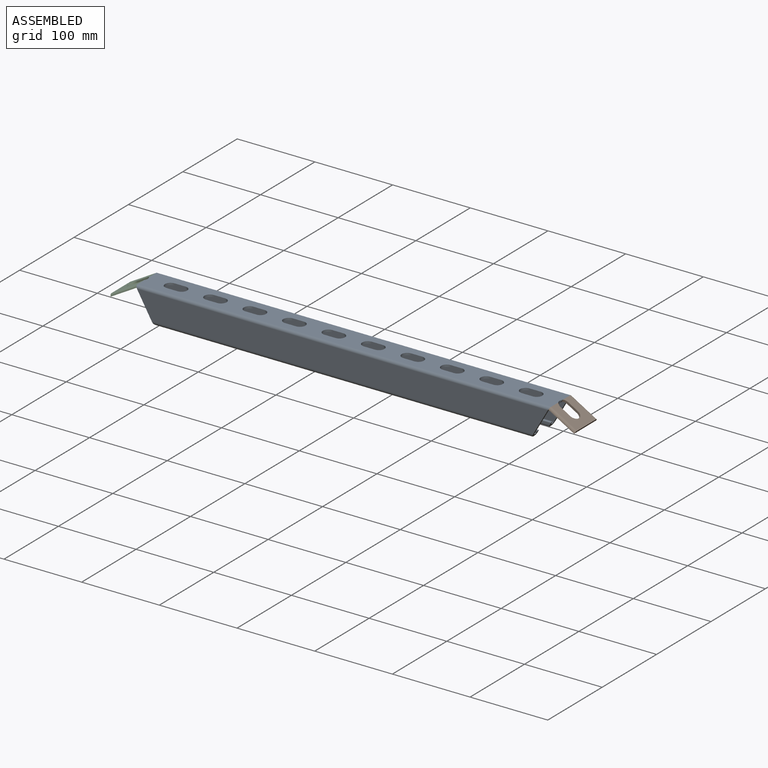
[diagram: assembled view]
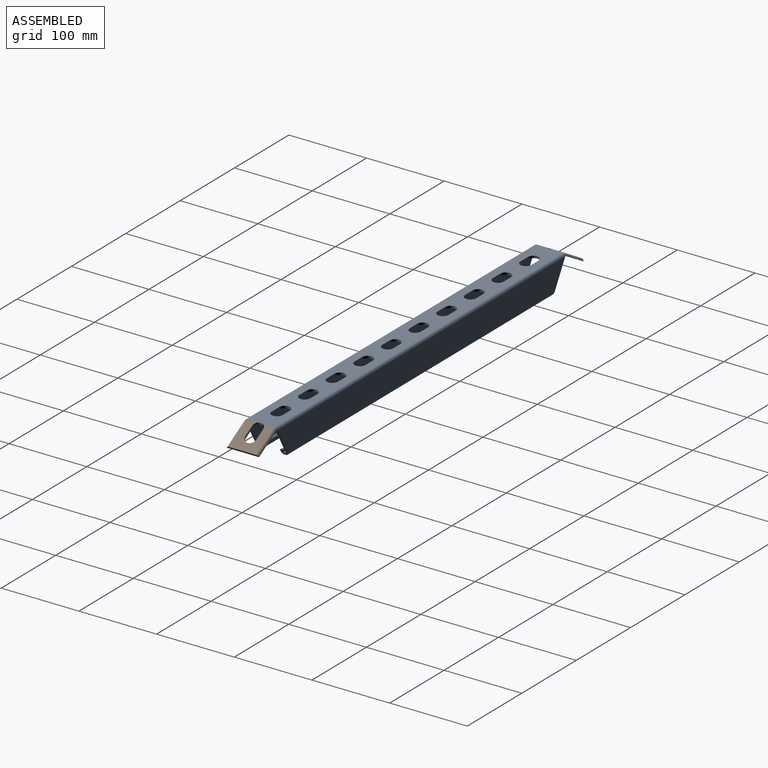
[diagram: assembled view, second angle]
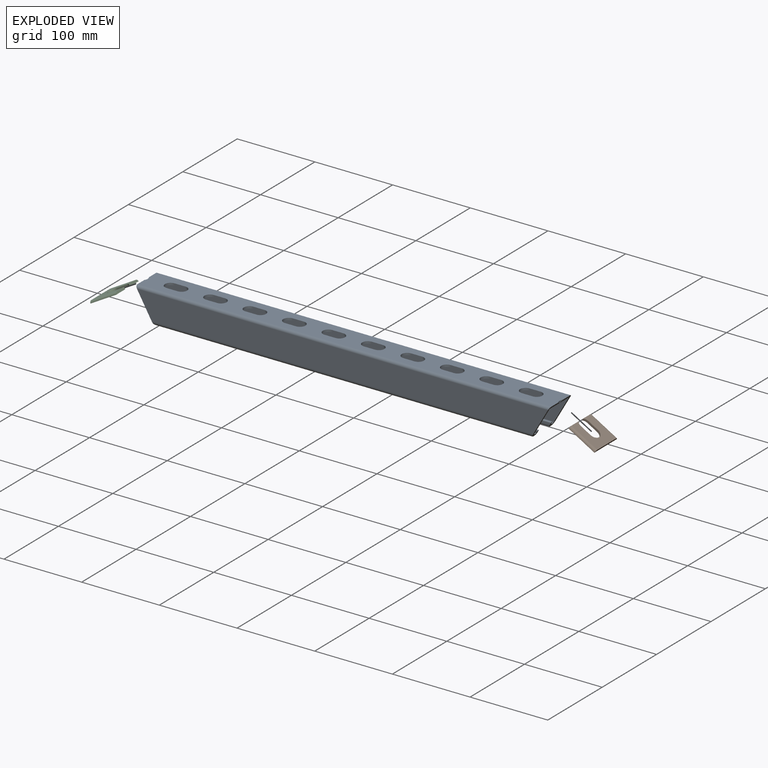
[diagram: exploded view]
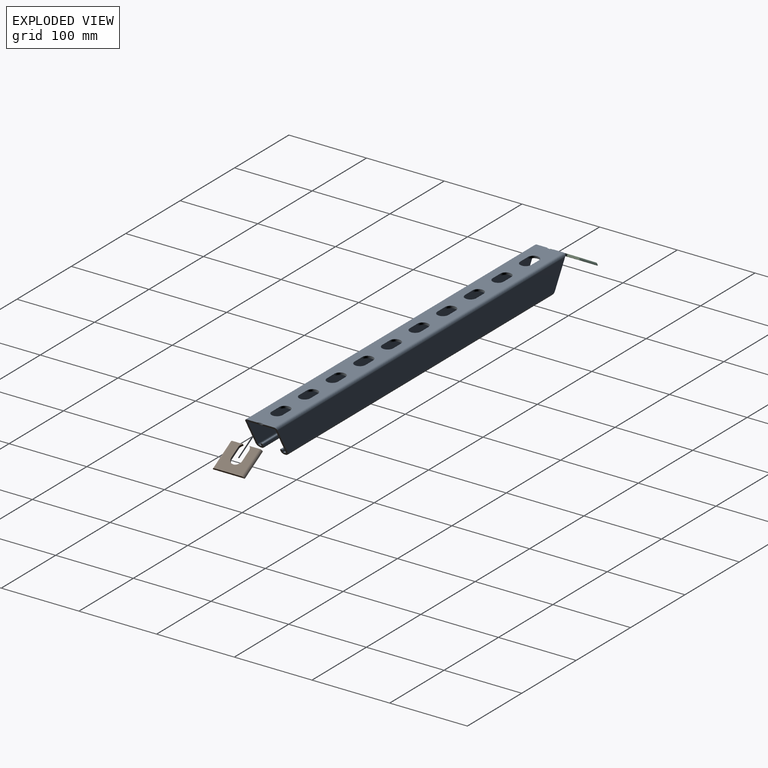
[diagram: exploded view, second angle]
ASSEMBLY  parts=3 mates=2
PART A: 72 faces, bbox 41.3x41.3x532.9 mm
  f0: plane 528.89x32.77mm, normal (0,1,0), area 16709.7mm2, adj f16,f17,f49,f71
  f1: plane 528.89x32.77mm, normal (0,-1,0), area 16709.7mm2, adj f18,f19,f49,f71
  f2: plane 485.22x1.02mm, normal (-1,0,0), area 493mm2, adj f19,f20,f49,f71
  f3: plane 491.85x2.28mm, normal (0,1,0), area 1118.2mm2, adj f15,f20,f49,f71
  f4: plane 491.85x2.28mm, normal (0,-1,0), area 1118.2mm2, adj f15,f23,f49,f71
  f5: plane 488.45x1.02mm, normal (1,0,0), area 496.3mm2, adj f23,f24,f49,f71
  f6: plane 528.89x32.77mm, normal (0,1,0), area 16709.7mm2, adj f24,f25,f49,f71
  f7: plane 529.66x34.35mm, normal (-1,0,0), area 14551mm2, adj f25,f26,f29,f30,f31,f32,f33,f34
  f8: plane 528.89x32.77mm, normal (0,-1,0), area 16709.7mm2, adj f26,f27,f49,f71
  f9: plane 488.45x1.02mm, normal (1,0,0), area 496.3mm2, adj f27,f28,f49,f71
  f10: plane 491.85x2.28mm, normal (0,1,0), area 1118.2mm2, adj f14,f28,f49,f71
  f11: plane 491.85x2.28mm, normal (0,-1,0), area 1118.2mm2, adj f14,f21,f49,f71
  f12: plane 485.22x1.02mm, normal (-1,0,0), area 493mm2, adj f16,f21,f49,f71
  f13: plane 532.88x34.35mm, normal (1,0,0), area 14646.8mm2, adj f17,f18,f22,f29,f30,f31,f32,f33
  f14: cylinder r=1.4mm len=493.47mm, axis (0,0,1), area 2163.1mm2, adj f10,f11,f49,f71
  f15: cylinder r=1.4mm len=493.47mm, axis (0,0,1), area 2163.1mm2, adj f3,f4,f49,f71
  f16: cylinder r=5.05mm len=491.05mm, axis (0,0,1), area 3864.5mm2, adj f0,f12,f49,f71
  f17: cylinder r=3.46mm len=532.88mm, axis (0,0,1), area 2888.9mm2, adj f0,f13,f49,f71
  f18: cylinder r=3.46mm len=532.88mm, axis (0,0,1), area 2888.9mm2, adj f1,f13,f49,f71
  f19: cylinder r=5.05mm len=491.05mm, axis (0,0,1), area 3864.5mm2, adj f1,f2,f49,f71
  f20: cylinder r=3.46mm len=489.22mm, axis (0,0,1), area 2645.6mm2, adj f2,f3,f49,f71
  f21: cylinder r=3.46mm len=489.22mm, axis (0,0,1), area 2645.6mm2, adj f11,f12,f49,f71
  f22: cylinder r=7.14mm len=8.3mm, axis (1,0,0), area 13.5mm2, adj f13,f49
  f23: cylinder r=0.67mm len=489.22mm, axis (0,0,1), area 511.9mm2, adj f4,f5,f49,f71
  f24: cylinder r=2.25mm len=491.05mm, axis (0,0,1), area 1732.9mm2, adj f5,f6,f49,f71
  f25: cylinder r=0.67mm len=529.66mm, axis (0,0,1), area 554.4mm2, adj f6,f7,f49,f71
  f26: cylinder r=0.67mm len=529.66mm, axis (0,0,1), area 554.4mm2, adj f7,f8,f49,f71
  f27: cylinder r=2.25mm len=491.05mm, axis (0,0,1), area 1732.9mm2, adj f8,f9,f49,f71
  f28: cylinder r=0.67mm len=489.22mm, axis (0,0,1), area 511.9mm2, adj f9,f10,f49,f71
  f29: cylinder r=7.14mm len=14.29mm, axis (1,0,0), area 62.7mm2, adj f7,f13,f46,f47
  f30: cylinder r=7.14mm len=14.29mm, axis (1,0,0), area 62.7mm2, adj f7,f13,f43,f44
  f31: cylinder r=7.14mm len=14.29mm, axis (1,0,0), area 62.7mm2, adj f7,f13,f40,f41
  f32: cylinder r=7.14mm len=14.29mm, axis (1,0,0), area 62.7mm2, adj f7,f13,f37,f38
  f33: cylinder r=7.14mm len=14.29mm, axis (1,0,0), area 62.7mm2, adj f7,f13,f35,f36
  f34: cylinder r=7.14mm len=14.29mm, axis (1,0,0), area 62.7mm2, adj f7,f13,f35,f36
  f35: plane 14.29x2.79mm, normal (0,-1,0), area 39.9mm2, adj f7,f13,f33,f34
  f36: plane 14.29x2.79mm, normal (0,1,0), area 39.9mm2, adj f7,f13,f33,f34
  f37: plane 14.29x2.79mm, normal (0,1,0), area 39.9mm2, adj f7,f13,f32,f39
  f38: plane 14.29x2.79mm, normal (0,-1,0), area 39.9mm2, adj f7,f13,f32,f39
  f39: cylinder r=7.14mm len=14.29mm, axis (1,0,0), area 62.7mm2, adj f7,f13,f37,f38
  f40: plane 14.29x2.79mm, normal (0,1,0), area 39.9mm2, adj f7,f13,f31,f42
  f41: plane 14.29x2.79mm, normal (0,-1,0), area 39.9mm2, adj f7,f13,f31,f42
  f42: cylinder r=7.14mm len=14.29mm, axis (1,0,0), area 62.7mm2, adj f7,f13,f40,f41
  f43: plane 14.29x2.79mm, normal (0,1,0), area 39.9mm2, adj f7,f13,f30,f45
  f44: plane 14.29x2.79mm, normal (0,-1,0), area 39.9mm2, adj f7,f13,f30,f45
  f45: cylinder r=7.14mm len=14.29mm, axis (1,0,0), area 62.7mm2, adj f7,f13,f43,f44
  f46: plane 14.29x2.79mm, normal (0,1,0), area 39.9mm2, adj f7,f13,f29,f48
  f47: plane 14.29x2.79mm, normal (0,-1,0), area 39.9mm2, adj f7,f13,f29,f48
  f48: cylinder r=7.14mm len=14.29mm, axis (1,0,0), area 62.7mm2, adj f7,f13,f46,f47
  f49: plane 41.28x41.28mm, normal (-0.5,0,0.87), area 414.4mm2, adj f0,f1,f2,f3,f4,f5,f6,f7
  f50: cylinder r=7.14mm len=8.3mm, axis (1,0,0), area 13.5mm2, adj f13,f71
  f51: cylinder r=7.14mm len=14.29mm, axis (1,0,0), area 62.7mm2, adj f7,f13,f68,f69
  f52: cylinder r=7.14mm len=14.29mm, axis (1,0,0), area 62.7mm2, adj f7,f13,f65,f66
  f53: cylinder r=7.14mm len=14.29mm, axis (1,0,0), area 62.7mm2, adj f7,f13,f62,f63
  f54: cylinder r=7.14mm len=14.29mm, axis (1,0,0), area 62.7mm2, adj f7,f13,f59,f60
  f55: cylinder r=7.14mm len=14.29mm, axis (1,0,0), area 62.7mm2, adj f7,f13,f57,f58
  f56: cylinder r=7.14mm len=14.29mm, axis (1,0,0), area 62.7mm2, adj f7,f13,f57,f58
  f57: plane 14.29x2.79mm, normal (0,-1,0), area 39.9mm2, adj f7,f13,f55,f56
  f58: plane 14.29x2.79mm, normal (0,1,0), area 39.9mm2, adj f7,f13,f55,f56
  f59: plane 14.29x2.79mm, normal (0,1,0), area 39.9mm2, adj f7,f13,f54,f61
  f60: plane 14.29x2.79mm, normal (0,-1,0), area 39.9mm2, adj f7,f13,f54,f61
  f61: cylinder r=7.14mm len=14.29mm, axis (1,0,0), area 62.7mm2, adj f7,f13,f59,f60
  f62: plane 14.29x2.79mm, normal (0,1,0), area 39.9mm2, adj f7,f13,f53,f64
  f63: plane 14.29x2.79mm, normal (0,-1,0), area 39.9mm2, adj f7,f13,f53,f64
  f64: cylinder r=7.14mm len=14.29mm, axis (1,0,0), area 62.7mm2, adj f7,f13,f62,f63
  f65: plane 14.29x2.79mm, normal (0,1,0), area 39.9mm2, adj f7,f13,f52,f67
  f66: plane 14.29x2.79mm, normal (0,-1,0), area 39.9mm2, adj f7,f13,f52,f67
  f67: cylinder r=7.14mm len=14.29mm, axis (1,0,0), area 62.7mm2, adj f7,f13,f65,f66
  f68: plane 14.29x2.79mm, normal (0,1,0), area 39.9mm2, adj f7,f13,f51,f70
  f69: plane 14.29x2.79mm, normal (0,-1,0), area 39.9mm2, adj f7,f13,f51,f70
  f70: cylinder r=7.14mm len=14.29mm, axis (1,0,0), area 62.7mm2, adj f7,f13,f68,f69
  f71: plane 41.28x41.28mm, normal (-0.5,0,-0.87), area 414.4mm2, adj f0,f1,f2,f3,f4,f5,f6,f7
PART B: 16 faces, bbox 2.8x41.2x38.4 mm
  f0: plane 14.29x2.79mm, normal (0,1,0), area 39.9mm2, adj f1,f4,f7,f9
  f1: cylinder r=7.14mm len=14.29mm, axis (1,0,0), area 62.7mm2, adj f0,f2,f4,f7
  f2: plane 14.29x2.79mm, normal (0,-1,0), area 39.9mm2, adj f1,f4,f7,f10
  f3: cylinder r=3.46mm len=38.36mm, axis (0,0,1), area 184.7mm2, adj f4,f11,f14,f15
  f4: plane 38.36x34.35mm, normal (1,0,0), area 960.8mm2, adj f0,f1,f2,f3,f5,f9,f10,f11
  f5: cylinder r=3.46mm len=38.36mm, axis (0,0,1), area 184.7mm2, adj f4,f11,f12,f13
  f6: cylinder r=0.67mm len=38.36mm, axis (0,0,1), area 9.9mm2, adj f7,f11,f12,f13
  f7: plane 38.36x34.35mm, normal (-1,0,0), area 960.8mm2, adj f0,f1,f2,f6,f8,f9,f10,f11
  f8: cylinder r=0.67mm len=38.36mm, axis (0,0,1), area 9.9mm2, adj f7,f11,f14,f15
  f9: cylinder r=7.14mm len=5.81mm, axis (1,0,0), area 19mm2, adj f0,f4,f7,f14
  f10: cylinder r=7.14mm len=5.81mm, axis (1,0,0), area 19mm2, adj f2,f4,f7,f12
  f11: plane 41.16x2.84mm, normal (0,0,1), area 110.5mm2, adj f3,f4,f5,f6,f7,f8,f13,f15
  f12: plane 16.43x2.84mm, normal (0,0,-1), area 43.7mm2, adj f4,f5,f6,f7,f10,f13
  f13: plane 38.36x3.15mm, normal (-1,0,0), area 120.9mm2, adj f5,f6,f11,f12
  f14: plane 16.43x2.84mm, normal (0,0,-1), area 43.7mm2, adj f3,f4,f7,f8,f9,f15
  f15: plane 38.36x3.15mm, normal (-1,0,0), area 120.9mm2, adj f3,f8,f11,f14
PART C: same geometry as B
PLACE A rot(axis=(0,-1,0),90deg) t=(-304.8,0,0)mm
PLACE B rot(axis=(0.87,0,0.5),180deg) t=(299.66,0,-19.18)mm
PLACE C rot(axis=(0,-1,0),120deg) t=(-299.66,0,-19.18)mm
MATE fastened C.f12 <-> A.f49  axis (0.87,0,0.5) through (-266.44,10.66,0)mm
MATE fastened B.f12 <-> A.f71  axis (-0.87,0,0.5) through (266.44,-10.66,0)mm
